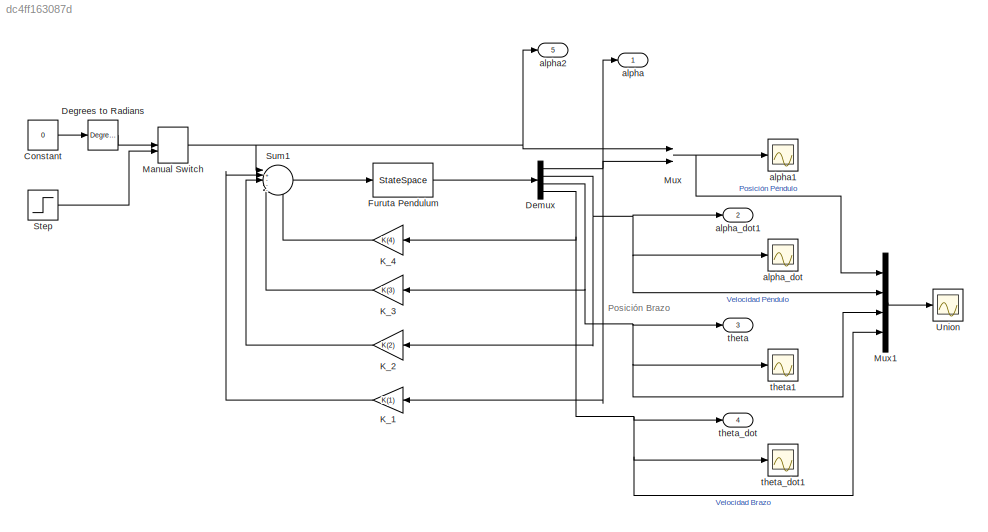
MODEL slx_dc4ff163087d
KIND model
BLOCK [Constant] Constant
  Value = 0
BLOCK [Reference] Degrees to Radians  REF=simulink_extras/Transformations/Degrees to
Radians
  Ports = [1, 1]
  SourceBlock = simulink_extras/Transformations/Degrees to\nRadians
  SourceType = DegreesToRadians
BLOCK [Demux] Demux
  DisplayOption = bar
  Ports = [1, 4]
BLOCK [StateSpace] Furuta Pendulum
  A = [0 0 1 0;   0 0 0 1;   0 X1 X2 0;   0 Y1 Y2 0]
  B = [0;0;X3;Y3]
  C = eye(4)
  D = [0;0;0;0]
  Ports = [1, 1]
  X0 = [0.1*pi/180;0;0;0]
BLOCK [Gain] K_1
  Gain = K(1)
  OutDataTypeStr = Inherit: Inherit via internal rule
  ParamDataTypeStr = Inherit: Inherit via internal rule
  SaturateOnIntegerOverflow = off
BLOCK [Gain] K_2
  Gain = K(2)
  OutDataTypeStr = Inherit: Inherit via internal rule
  ParamDataTypeStr = Inherit: Inherit via internal rule
  SaturateOnIntegerOverflow = off
BLOCK [Gain] K_3
  Gain = K(3)
  OutDataTypeStr = Inherit: Inherit via internal rule
  ParamDataTypeStr = Inherit: Inherit via internal rule
  SaturateOnIntegerOverflow = off
BLOCK [Gain] K_4
  Gain = K(4)
  OutDataTypeStr = Inherit: Inherit via internal rule
  ParamDataTypeStr = Inherit: Inherit via internal rule
  SaturateOnIntegerOverflow = off
BLOCK [ManualSwitch] Manual Switch
BLOCK [Mux] Mux
  DisplayOption = bar
  Inputs = 2
  Ports = [2, 1]
BLOCK [Mux] Mux1
  DisplayOption = bar
  Ports = [4, 1]
BLOCK [Step] Step
  After = 0*pi/180
  Before = 1*pi/180
  SampleTime = 0
BLOCK [Sum] Sum1
  IconShape = round
  InputSameDT = off
  Inputs = |+----
  OutDataTypeStr = Inherit: Inherit via internal rule
  Ports = [5, 1]
  SaturateOnIntegerOverflow = off
BLOCK [Scope] Union 
  DataFormat = StructureWithTime
  Floating = off
  LegendLocations = 0.869     0.82534     0.10908     0.12064
  LimitDataPoints = off
  NumInputPorts = 1
  Ports = [1]
  SampleTime = 0
  SaveName = ScopeData4
  ShowLegends = on
  YMax = 1
  YMin = -1
BLOCK [Outport] alpha
  IconDisplay = Port number
BLOCK [Scope] alpha1
  DataFormat = StructureWithTime
  Floating = off
  LimitDataPoints = off
  NumInputPorts = 1
  Ports = [1]
  SampleTime = 0
  ShowLegends = off
  ZoomMode = yonly
BLOCK [Outport] alpha2
  IconDisplay = Port number
  Port = 5
BLOCK [Scope] alpha_dot
  DataFormat = StructureWithTime
  Floating = off
  LimitDataPoints = off
  NumInputPorts = 1
  Ports = [1]
  SampleTime = 0
  SaveName = ScopeData1
  ShowLegends = off
  ZoomMode = yonly
BLOCK [Outport] alpha_dot1
  IconDisplay = Port number
  Port = 2
BLOCK [Outport] theta
  IconDisplay = Port number
  Port = 3
BLOCK [Scope] theta1
  DataFormat = StructureWithTime
  Floating = off
  LimitDataPoints = off
  NumInputPorts = 1
  Ports = [1]
  SampleTime = 0
  SaveName = ScopeData2
  ShowLegends = off
BLOCK [Outport] theta_dot
  IconDisplay = Port number
  Port = 4
BLOCK [Scope] theta_dot1
  DataFormat = StructureWithTime
  Floating = off
  LimitDataPoints = off
  NumInputPorts = 1
  Ports = [1]
  SampleTime = 0
  SaveName = ScopeData3
  ShowLegends = off
ANNOTATION (root): Posición Brazo
LINE Constant:1 -> Degrees to Radians:1
LINE Degrees to Radians:1 -> Manual Switch:1
NET Demux:1 -> K_1:1, Mux:2, alpha:1
NET Demux:2 -> K_2:1, Mux1:2, alpha_dot1:1, alpha_dot:1
NET Demux:3 -> K_3:1, Mux1:3, theta1:1, theta:1
NET Demux:4 -> K_4:1, Mux1:4, theta_dot1:1, theta_dot:1
LINE Furuta Pendulum:1 -> Demux:1
LINE K_1:1 -> Sum1:2
LINE K_2:1 -> Sum1:3
LINE K_3:1 -> Sum1:4
LINE K_4:1 -> Sum1:5
NET Manual Switch:1 -> Mux:1, Sum1:1, alpha2:1
LINE Mux1:1 -> Union :1
NET Mux:1 -> Mux1:1, alpha1:1
LINE Step:1 -> Manual Switch:2
LINE Sum1:1 -> Furuta Pendulum:1
note: NET lines group one-source signal fan-out (src -> all destinations, sorted); 1:1 wires keep LINE
